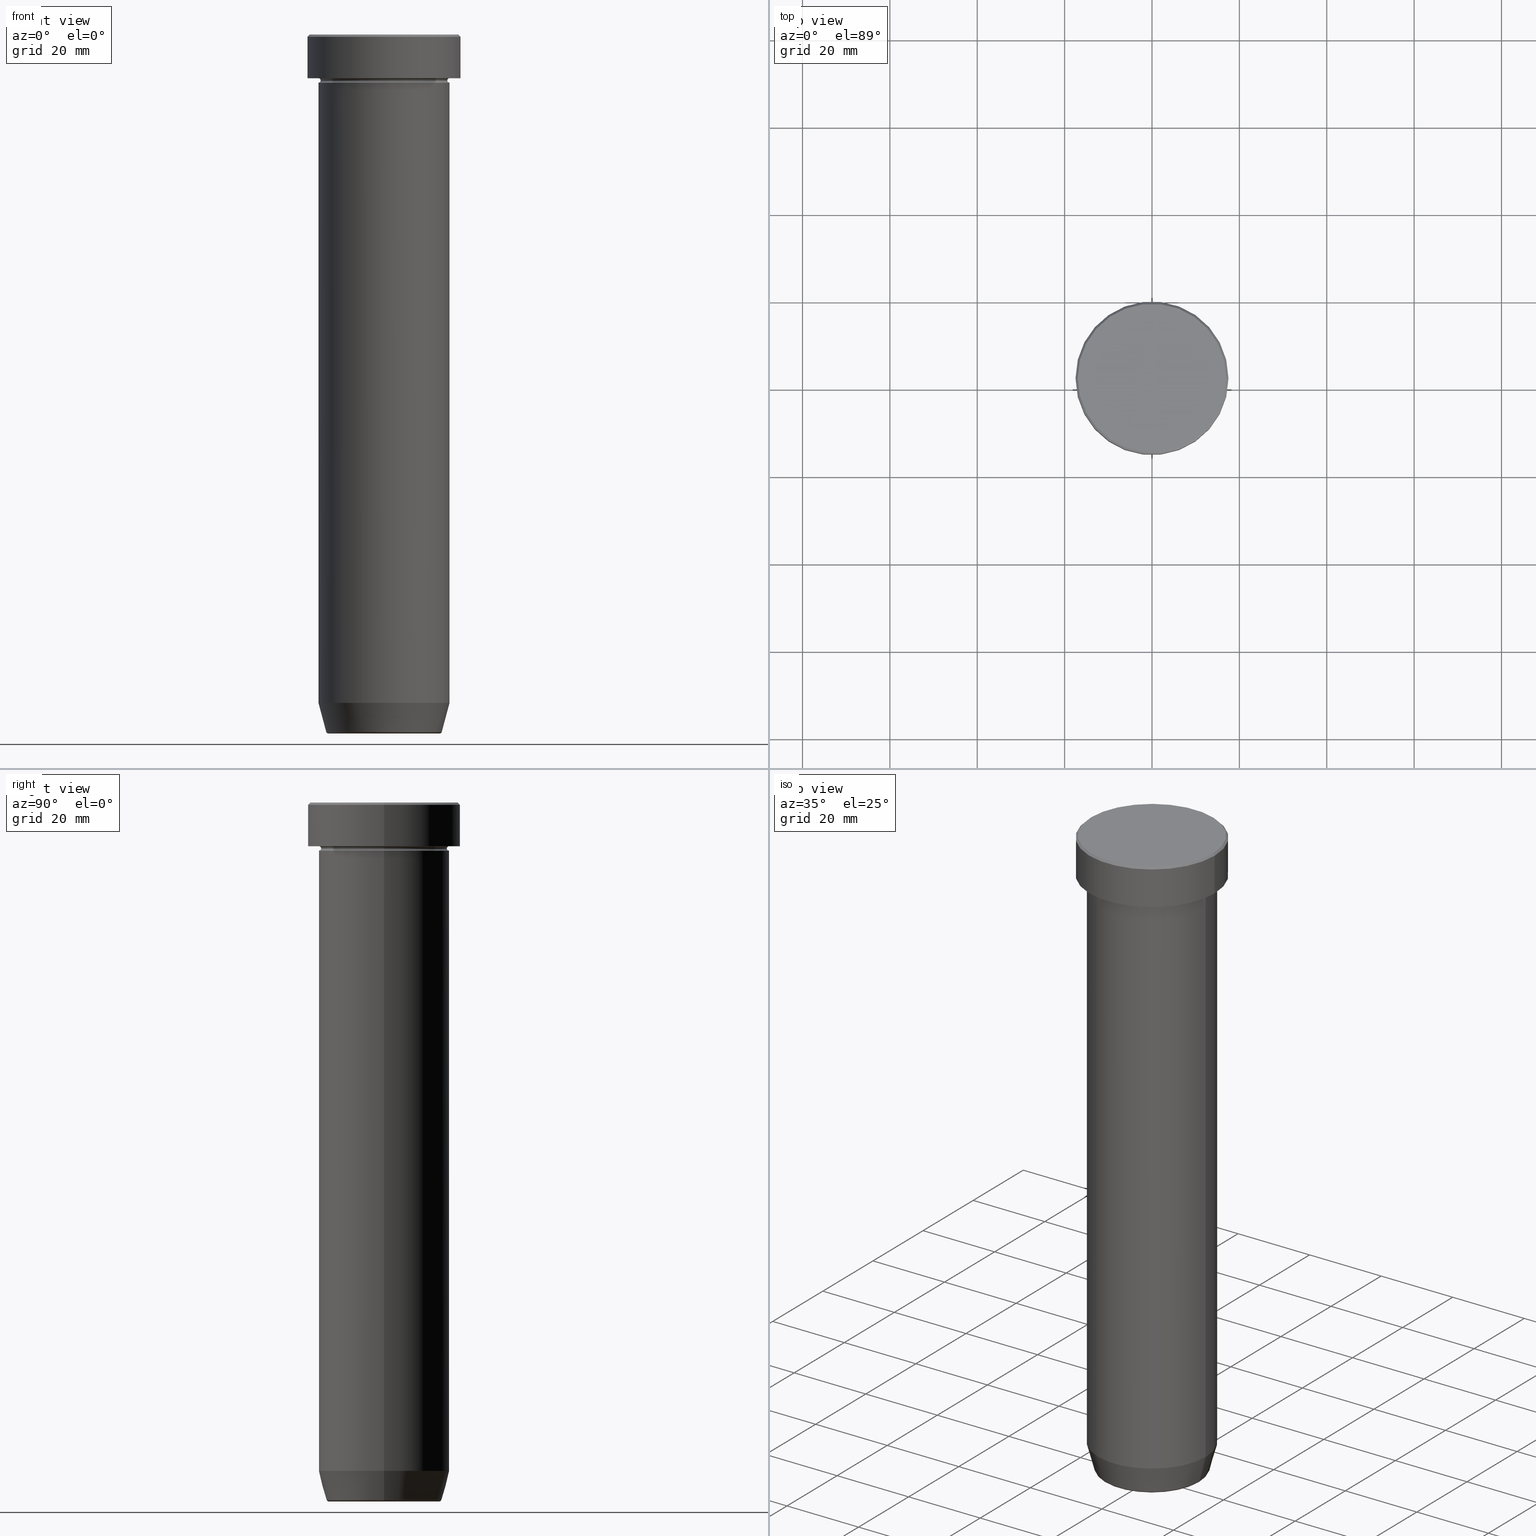
[diagram: canonical four-view strip — front | top / right | iso, engineering-drawing reading convention]
A machine part, canonical four-view strip (front | top / right | iso — engineering-drawing reading convention). The complete STEP part file that produces these views, byte-faithful:
ISO-10303-21;
HEADER;
FILE_DESCRIPTION (( 'STEP AP203' ),
    '1' );
FILE_NAME ('203a.STEP',
    '2024-01-02T17:38:34',
    ( '' ),
    ( '' ),
    'SwSTEP 2.0',
    'SolidWorks 2019',
    '' );
FILE_SCHEMA (( 'CONFIG_CONTROL_DESIGN' ));
ENDSEC;

DATA;
#1 = CARTESIAN_POINT ( 'NONE',  ( -17.50000000000000000, 2.143131898507868248E-15, 0.000000000000000000 ) ) ;
#2 = EDGE_CURVE ( 'NONE', #34, #524, #432, .T. ) ;
#3 = CARTESIAN_POINT ( 'NONE',  ( 0.000000000000000000, 0.000000000000000000, 0.000000000000000000 ) ) ;
#4 = AXIS2_PLACEMENT_3D ( 'NONE', #163, #207, #572 ) ;
#5 = ADVANCED_FACE ( 'NONE', ( #132 ), #516, .T. ) ;
#6 = AXIS2_PLACEMENT_3D ( 'NONE', #319, #7, #185 ) ;
#7 = DIRECTION ( 'NONE',  ( -0.000000000000000000, -0.000000000000000000, 1.000000000000000000 ) ) ;
#8 = ORIENTED_EDGE ( 'NONE', *, *, #335, .F. ) ;
#9 = EDGE_CURVE ( 'NONE', #395, #556, #225, .T. ) ;
#10 = DIRECTION ( 'NONE',  ( 1.000000000000000000, 0.000000000000000000, 0.000000000000000000 ) ) ;
#11 = CC_DESIGN_PERSON_AND_ORGANIZATION_ASSIGNMENT ( #115, #481, ( #554 ) ) ;
#12 = UNCERTAINTY_MEASURE_WITH_UNIT (LENGTH_MEASURE( 1.000000000000000082E-05 ), #327, 'distance_accuracy_value', 'NONE');
#13 = COORDINATED_UNIVERSAL_TIME_OFFSET ( 1, 0, .AHEAD. ) ;
#14 = AXIS2_PLACEMENT_3D ( 'NONE', #116, #70, #536 ) ;
#15 = CARTESIAN_POINT ( 'NONE',  ( -17.50000000000000000, 2.143131898507868248E-15, -0.5000000000000073275 ) ) ;
#16 = CLOSED_SHELL ( 'NONE', ( #269, #405, #596, #527, #288, #339, #317, #170, #472, #531, #179, #487, #539 ) ) ;
#17 = DIRECTION ( 'NONE',  ( 1.000000000000000000, 0.000000000000000000, 0.000000000000000000 ) ) ;
#18 = CARTESIAN_POINT ( 'NONE',  ( 0.000000000000000000, 0.000000000000000000, -160.0000000000000000 ) ) ;
#19 = EDGE_LOOP ( 'NONE', ( #355, #568 ) ) ;
#20 = AXIS2_PLACEMENT_3D ( 'NONE', #249, #99, #204 ) ;
#21 = DIRECTION ( 'NONE',  ( -1.224646799147353207E-16, 1.000000000000000000, 0.000000000000000000 ) ) ;
#22 = VERTEX_POINT ( 'NONE', #74 ) ;
#23 = SECURITY_CLASSIFICATION_LEVEL ( 'unclassified' ) ;
#24 = CIRCLE ( 'NONE', #222, 15.00000000000000000 ) ;
#25 = EDGE_LOOP ( 'NONE', ( #546, #250 ) ) ;
#26 = LINE ( 'NONE', #28, #381 ) ;
#27 = ORIENTED_EDGE ( 'NONE', *, *, #579, .F. ) ;
#28 = CARTESIAN_POINT ( 'NONE',  ( 17.50000000000000000, 0.000000000000000000, 0.000000000000000000 ) ) ;
#29 = APPROVAL ( #580, 'NEUR�EN�' ) ;
#30 = ORIENTED_EDGE ( 'NONE', *, *, #520, .T. ) ;
#31 = CALENDAR_DATE ( 2024, 2, 1 ) ;
#32 = FACE_OUTER_BOUND ( 'NONE', #526, .T. ) ;
#33 = VECTOR ( 'NONE', #545, 1000.000000000000000 ) ;
#34 = VERTEX_POINT ( 'NONE', #439 ) ;
#35 = CIRCLE ( 'NONE', #203, 15.00000000000000000 ) ;
#36 = CIRCLE ( 'NONE', #211, 0.5000000000000004441 ) ;
#37 = DATE_AND_TIME ( #340, #443 ) ;
#38 = DIRECTION ( 'NONE',  ( -1.000000000000000000, 0.000000000000000000, -0.000000000000000000 ) ) ;
#39 = ORIENTED_EDGE ( 'NONE', *, *, #205, .F. ) ;
#40 = CARTESIAN_POINT ( 'NONE',  ( -15.00000000000000000, 1.836970198721029589E-15, -36.00000000000000000 ) ) ;
#41 = EDGE_LOOP ( 'NONE', ( #303, #161, #311, #413 ) ) ;
#42 = DIRECTION ( 'NONE',  ( -1.000000000000000000, 0.000000000000000000, 0.000000000000000000 ) ) ;
#43 = ORIENTED_EDGE ( 'NONE', *, *, #495, .T. ) ;
#44 = CARTESIAN_POINT ( 'NONE',  ( 17.50000000000000000, 0.000000000000000000, -9.999999999999998224 ) ) ;
#45 = DIRECTION ( 'NONE',  ( 1.000000000000000000, 0.000000000000000000, 0.000000000000000000 ) ) ;
#46 = EDGE_CURVE ( 'NONE', #60, #504, #89, .T. ) ;
#47 = DIRECTION ( 'NONE',  ( -0.000000000000000000, -0.000000000000000000, 1.000000000000000000 ) ) ;
#48 = DIRECTION ( 'NONE',  ( -0.000000000000000000, -0.000000000000000000, 1.000000000000000000 ) ) ;
#49 = AXIS2_PLACEMENT_3D ( 'NONE', #433, #398, #533 ) ;
#50 = AXIS2_PLACEMENT_3D ( 'NONE', #518, #103, #564 ) ;
#51 = DIRECTION ( 'NONE',  ( 1.000000000000000000, 0.000000000000000000, 0.000000000000000000 ) ) ;
#52 = DIRECTION ( 'NONE',  ( 1.000000000000000000, 0.000000000000000000, 0.000000000000000000 ) ) ;
#53 = DIRECTION ( 'NONE',  ( -1.000000000000000000, 0.000000000000000000, 0.000000000000000000 ) ) ;
#54 = FACE_OUTER_BOUND ( 'NONE', #41, .T. ) ;
#55 = PERSON_AND_ORGANIZATION ( #446, #552 ) ;
#56 = CYLINDRICAL_SURFACE ( 'NONE', #20, 17.50000000000000000 ) ;
#57 = AXIS2_PLACEMENT_3D ( 'NONE', #598, #92, #264 ) ;
#58 = ORIENTED_EDGE ( 'NONE', *, *, #360, .F. ) ;
#59 = DIRECTION ( 'NONE',  ( -0.000000000000000000, -0.000000000000000000, 1.000000000000000000 ) ) ;
#60 = VERTEX_POINT ( 'NONE', #245 ) ;
#61 = PRODUCT_RELATED_PRODUCT_CATEGORY ( 'detail', '', ( #464 ) ) ;
#62 = FACE_OUTER_BOUND ( 'NONE', #437, .T. ) ;
#63 = AXIS2_PLACEMENT_3D ( 'NONE', #379, #559, #466 ) ;
#64 = CARTESIAN_POINT ( 'NONE',  ( 0.000000000000000000, 0.000000000000000000, -9.999999999999998224 ) ) ;
#65 = ORIENTED_EDGE ( 'NONE', *, *, #148, .F. ) ;
#66 = CARTESIAN_POINT ( 'NONE',  ( -15.00000000000000000, 1.836970198721029589E-15, -10.49999999999999822 ) ) ;
#67 = CONICAL_SURFACE ( 'NONE', #578, 17.00000000000000000, 0.7853981633974415066 ) ;
#68 = ORIENTED_EDGE ( 'NONE', *, *, #265, .F. ) ;
#69 = PERSON_AND_ORGANIZATION_ROLE ( 'creator' ) ;
#70 = DIRECTION ( 'NONE',  ( -0.000000000000000000, -0.000000000000000000, 1.000000000000000000 ) ) ;
#71 = EDGE_CURVE ( 'NONE', #171, #395, #370, .T. ) ;
#72 = ORIENTED_EDGE ( 'NONE', *, *, #123, .F. ) ;
#73 = DIRECTION ( 'NONE',  ( 1.000000000000000000, 0.000000000000000000, 0.000000000000000000 ) ) ;
#74 = CARTESIAN_POINT ( 'NONE',  ( 15.00000000000000000, 0.000000000000000000, -11.00000000000000000 ) ) ;
#75 = DIRECTION ( 'NONE',  ( 1.000000000000000000, 0.000000000000000000, 0.000000000000000000 ) ) ;
#76 = EDGE_LOOP ( 'NONE', ( #124, #108, #58, #589 ) ) ;
#77 = TOROIDAL_SURFACE ( 'NONE', #460, 15.00000000000000000, 0.5000000000000000000 ) ;
#78 = EDGE_CURVE ( 'NONE', #524, #384, #593, .T. ) ;
#79 = CIRCLE ( 'NONE', #224, 0.5000000000000004441 ) ;
#80 = PERSON_AND_ORGANIZATION ( #446, #552 ) ;
#81 = CARTESIAN_POINT ( 'NONE',  ( -13.12435565298212836, 1.607270014129603399E-15, -160.0000000000000000 ) ) ;
#82 = DIRECTION ( 'NONE',  ( -0.000000000000000000, -0.000000000000000000, 1.000000000000000000 ) ) ;
#83 = APPROVAL ( #323, 'NEUR�EN�' ) ;
#84 = DIRECTION ( 'NONE',  ( -0.000000000000000000, -0.000000000000000000, 1.000000000000000000 ) ) ;
#85 = ORIENTED_EDGE ( 'NONE', *, *, #335, .T. ) ;
#86 = DIRECTION ( 'NONE',  ( 0.000000000000000000, 0.000000000000000000, -1.000000000000000000 ) ) ;
#87 = ORIENTED_EDGE ( 'NONE', *, *, #399, .T. ) ;
#88 = APPROVAL_DATE_TIME ( #591, #372 ) ;
#89 = CIRCLE ( 'NONE', #154, 17.50000000000000000 ) ;
#90 = DIRECTION ( 'NONE',  ( -0.000000000000000000, -0.000000000000000000, 1.000000000000000000 ) ) ;
#91 = ADVANCED_FACE ( 'NONE', ( #110 ), #322, .T. ) ;
#92 = DIRECTION ( 'NONE',  ( 0.000000000000000000, 0.000000000000000000, -1.000000000000000000 ) ) ;
#93 = CIRCLE ( 'NONE', #585, 14.49999999999999822 ) ;
#94 = LINE ( 'NONE', #550, #33 ) ;
#95 =( NAMED_UNIT ( * ) SI_UNIT ( $, .STERADIAN. ) SOLID_ANGLE_UNIT ( ) );
#96 = LOCAL_TIME ( 18, 38, 34.00000000000000000, #165 ) ;
#97 = DIRECTION ( 'NONE',  ( -0.000000000000000000, -0.000000000000000000, 1.000000000000000000 ) ) ;
#98 = CARTESIAN_POINT ( 'NONE',  ( 0.000000000000000000, 0.000000000000000000, 0.000000000000000000 ) ) ;
#99 = DIRECTION ( 'NONE',  ( -0.000000000000000000, -0.000000000000000000, 1.000000000000000000 ) ) ;
#100 = VERTEX_POINT ( 'NONE', #197 ) ;
#101 = AXIS2_PLACEMENT_3D ( 'NONE', #146, #21, #277 ) ;
#102 = DIRECTION ( 'NONE',  ( -1.000000000000000000, 0.000000000000000000, 0.000000000000000000 ) ) ;
#103 = DIRECTION ( 'NONE',  ( 1.224646799147353207E-16, 1.000000000000000000, 0.000000000000000000 ) ) ;
#104 = APPROVAL_PERSON_ORGANIZATION ( #80, #29, #532 ) ;
#105 = DIRECTION ( 'NONE',  ( 1.000000000000000000, 0.000000000000000000, 0.000000000000000000 ) ) ;
#106 = AXIS2_PLACEMENT_3D ( 'NONE', #566, #109, #289 ) ;
#107 = CC_DESIGN_DATE_AND_TIME_ASSIGNMENT ( #37, #528, ( #554 ) ) ;
#108 = ORIENTED_EDGE ( 'NONE', *, *, #123, .T. ) ;
#109 = DIRECTION ( 'NONE',  ( 0.000000000000000000, 0.000000000000000000, 1.000000000000000000 ) ) ;
#110 = FACE_OUTER_BOUND ( 'NONE', #537, .T. ) ;
#111 = EDGE_LOOP ( 'NONE', ( #164, #201 ) ) ;
#112 = DIRECTION ( 'NONE',  ( -0.000000000000000000, -0.000000000000000000, 1.000000000000000000 ) ) ;
#113 = ORIENTED_EDGE ( 'NONE', *, *, #295, .F. ) ;
#114 = CC_DESIGN_PERSON_AND_ORGANIZATION_ASSIGNMENT ( #486, #69, ( #373 ) ) ;
#115 = PERSON_AND_ORGANIZATION ( #446, #552 ) ;
#116 = CARTESIAN_POINT ( 'NONE',  ( 0.000000000000000000, 0.000000000000000000, -9.999999999999998224 ) ) ;
#117 = CONICAL_SURFACE ( 'NONE', #305, 17.00000000000000000, 0.7853981633974415066 ) ;
#118 = CC_DESIGN_APPROVAL ( #372, ( #471 ) ) ;
#119 = ORIENTED_EDGE ( 'NONE', *, *, #396, .F. ) ;
#120 = DIRECTION ( 'NONE',  ( -1.000000000000000000, 0.000000000000000000, 0.000000000000000000 ) ) ;
#121 = VERTEX_POINT ( 'NONE', #189 ) ;
#122 = DIRECTION ( 'NONE',  ( -0.000000000000000000, -0.000000000000000000, 1.000000000000000000 ) ) ;
#123 = EDGE_CURVE ( 'NONE', #139, #541, #463, .T. ) ;
#124 = ORIENTED_EDGE ( 'NONE', *, *, #511, .F. ) ;
#125 = DIRECTION ( 'NONE',  ( -0.000000000000000000, -0.000000000000000000, 1.000000000000000000 ) ) ;
#126 = EDGE_CURVE ( 'NONE', #291, #139, #193, .T. ) ;
#127 = ORIENTED_EDGE ( 'NONE', *, *, #257, .F. ) ;
#128 = CIRCLE ( 'NONE', #403, 17.50000000000000000 ) ;
#129 = DIRECTION ( 'NONE',  ( -1.000000000000000000, 0.000000000000000000, 0.000000000000000000 ) ) ;
#130 = DIRECTION ( 'NONE',  ( -0.000000000000000000, -0.000000000000000000, 1.000000000000000000 ) ) ;
#131 = PLANE ( 'NONE',  #57 ) ;
#132 = FACE_OUTER_BOUND ( 'NONE', #338, .T. ) ;
#133 = CARTESIAN_POINT ( 'NONE',  ( 0.000000000000000000, 0.000000000000000000, -10.49999999999999822 ) ) ;
#134 = TOROIDAL_SURFACE ( 'NONE', #431, 15.00000000000000000, 0.5000000000000000000 ) ;
#135 = AXIS2_PLACEMENT_3D ( 'NONE', #66, #538, #252 ) ;
#136 = LINE ( 'NONE', #273, #575 ) ;
#137 = DIRECTION ( 'NONE',  ( 0.000000000000000000, 0.000000000000000000, -1.000000000000000000 ) ) ;
#138 = TOROIDAL_SURFACE ( 'NONE', #314, 12.74069215899265295, 0.5000000000000000000 ) ;
#139 = VERTEX_POINT ( 'NONE', #242 ) ;
#140 = APPLICATION_CONTEXT ( 'configuration controlled 3d designs of mechanical parts and assemblies' ) ;
#141 = AXIS2_PLACEMENT_3D ( 'NONE', #492, #444, #38 ) ;
#142 = PERSON_AND_ORGANIZATION ( #446, #552 ) ;
#143 = LOCAL_TIME ( 18, 38, 34.00000000000000000, #13 ) ;
#144 = CARTESIAN_POINT ( 'NONE',  ( 0.000000000000000000, 0.000000000000000000, -160.0000000000000000 ) ) ;
#145 = CARTESIAN_POINT ( 'NONE',  ( 15.00000000000000000, 0.000000000000000000, -10.49999999999999822 ) ) ;
#146 = CARTESIAN_POINT ( 'NONE',  ( 15.00000000000000000, 1.836970198721029589E-15, -10.49999999999999822 ) ) ;
#147 = CARTESIAN_POINT ( 'NONE',  ( 0.000000000000000000, 0.000000000000000000, -159.6294095225512422 ) ) ;
#148 = EDGE_CURVE ( 'NONE', #422, #287, #475, .T. ) ;
#149 = DIRECTION ( 'NONE',  ( -0.000000000000000000, -0.000000000000000000, 1.000000000000000000 ) ) ;
#150 = ORIENTED_EDGE ( 'NONE', *, *, #557, .T. ) ;
#151 = PLANE ( 'NONE',  #296 ) ;
#152 = CIRCLE ( 'NONE', #251, 13.22365507213718772 ) ;
#153 = CARTESIAN_POINT ( 'NONE',  ( 17.00000000000000000, 2.081899558550500280E-15, 0.000000000000000000 ) ) ;
#154 = AXIS2_PLACEMENT_3D ( 'NONE', #214, #82, #286 ) ;
#155 = AXIS2_PLACEMENT_3D ( 'NONE', #597, #218, #51 ) ;
#156 = ORIENTED_EDGE ( 'NONE', *, *, #2, .T. ) ;
#157 = CARTESIAN_POINT ( 'NONE',  ( 15.00000000000000000, 0.000000000000000000, -36.00000000000000000 ) ) ;
#158 = EDGE_LOOP ( 'NONE', ( #576, #206, #263, #235 ) ) ;
#159 = DATE_AND_TIME ( #571, #96 ) ;
#160 = FACE_OUTER_BOUND ( 'NONE', #176, .T. ) ;
#161 = ORIENTED_EDGE ( 'NONE', *, *, #2, .F. ) ;
#162 = CC_DESIGN_PERSON_AND_ORGANIZATION_ASSIGNMENT ( #216, #428, ( #373 ) ) ;
#163 = CARTESIAN_POINT ( 'NONE',  ( 0.000000000000000000, 0.000000000000000000, 0.000000000000000000 ) ) ;
#164 = ORIENTED_EDGE ( 'NONE', *, *, #352, .F. ) ;
#165 = COORDINATED_UNIVERSAL_TIME_OFFSET ( 1, 0, .AHEAD. ) ;
#166 = CARTESIAN_POINT ( 'NONE',  ( 0.000000000000000000, 0.000000000000000000, 0.000000000000000000 ) ) ;
#167 = EDGE_LOOP ( 'NONE', ( #336, #489 ) ) ;
#168 = CIRCLE ( 'NONE', #63, 15.00000000000000000 ) ;
#169 = DIRECTION ( 'NONE',  ( 1.000000000000000000, 0.000000000000000000, 0.000000000000000000 ) ) ;
#170 = ADVANCED_FACE ( 'NONE', ( #470 ), #56, .T. ) ;
#171 = VERTEX_POINT ( 'NONE', #290 ) ;
#172 = CARTESIAN_POINT ( 'NONE',  ( 0.000000000000000000, 0.000000000000000000, 0.000000000000000000 ) ) ;
#173 = ORIENTED_EDGE ( 'NONE', *, *, #9, .F. ) ;
#174 = VECTOR ( 'NONE', #356, 1000.000000000000000 ) ;
#175 = FACE_BOUND ( 'NONE', #19, .T. ) ;
#176 = EDGE_LOOP ( 'NONE', ( #301, #380, #544, #127 ) ) ;
#177 = EDGE_CURVE ( 'NONE', #100, #287, #449, .T. ) ;
#178 = CALENDAR_DATE ( 2024, 2, 1 ) ;
#179 = ADVANCED_FACE ( 'NONE', ( #239 ), #350, .F. ) ;
#180 = LINE ( 'NONE', #594, #411 ) ;
#181 = FACE_OUTER_BOUND ( 'NONE', #415, .T. ) ;
#182 = CIRCLE ( 'NONE', #522, 0.5000000000000004441 ) ;
#183 = APPROVAL_PERSON_ORGANIZATION ( #599, #372, #401 ) ;
#184 = CARTESIAN_POINT ( 'NONE',  ( 0.000000000000000000, 0.000000000000000000, 0.000000000000000000 ) ) ;
#185 = DIRECTION ( 'NONE',  ( 1.000000000000000000, 0.000000000000000000, 0.000000000000000000 ) ) ;
#186 = ORIENTED_EDGE ( 'NONE', *, *, #560, .F. ) ;
#187 = ADVANCED_FACE ( 'NONE', ( #515 ), #374, .T. ) ;
#188 = PERSON_AND_ORGANIZATION_ROLE ( 'design_owner' ) ;
#189 = CARTESIAN_POINT ( 'NONE',  ( -15.00000000000000000, 1.836970198721029589E-15, -36.00000000000000000 ) ) ;
#190 = DIRECTION ( 'NONE',  ( 1.000000000000000000, 0.000000000000000000, 0.000000000000000000 ) ) ;
#191 = APPLICATION_CONTEXT ( 'configuration controlled 3d designs of mechanical parts and assemblies' ) ;
#192 = DIRECTION ( 'NONE',  ( 1.000000000000000000, 0.000000000000000000, 0.000000000000000000 ) ) ;
#193 = CIRCLE ( 'NONE', #508, 17.00000000000000000 ) ;
#194 = CC_DESIGN_DATE_AND_TIME_ASSIGNMENT ( #549, #501, ( #471 ) ) ;
#195 = FACE_OUTER_BOUND ( 'NONE', #243, .T. ) ;
#196 = EDGE_CURVE ( 'NONE', #100, #406, #93, .T. ) ;
#197 = CARTESIAN_POINT ( 'NONE',  ( 14.49999999999999822, 0.000000000000000000, -10.49999999999999822 ) ) ;
#198 = ORIENTED_EDGE ( 'NONE', *, *, #177, .F. ) ;
#199 = DIRECTION ( 'NONE',  ( 1.000000000000000000, 0.000000000000000000, 0.000000000000000000 ) ) ;
#200 = DIRECTION ( 'NONE',  ( -0.000000000000000000, -0.000000000000000000, 1.000000000000000000 ) ) ;
#201 = ORIENTED_EDGE ( 'NONE', *, *, #46, .F. ) ;
#202 = PERSON_AND_ORGANIZATION ( #446, #552 ) ;
#203 = AXIS2_PLACEMENT_3D ( 'NONE', #397, #584, #351 ) ;
#204 = DIRECTION ( 'NONE',  ( 1.000000000000000000, 0.000000000000000000, 0.000000000000000000 ) ) ;
#205 = EDGE_CURVE ( 'NONE', #309, #246, #168, .T. ) ;
#206 = ORIENTED_EDGE ( 'NONE', *, *, #307, .T. ) ;
#207 = DIRECTION ( 'NONE',  ( 0.000000000000000000, -0.000000000000000000, 1.000000000000000000 ) ) ;
#208 = ORIENTED_EDGE ( 'NONE', *, *, #300, .F. ) ;
#209 = FACE_OUTER_BOUND ( 'NONE', #76, .T. ) ;
#210 = ORIENTED_EDGE ( 'NONE', *, *, #386, .T. ) ;
#211 = AXIS2_PLACEMENT_3D ( 'NONE', #310, #503, #86 ) ;
#212 = CARTESIAN_POINT ( 'NONE',  ( 0.000000000000000000, 0.000000000000000000, -36.00000000000000000 ) ) ;
#213 = AXIS2_PLACEMENT_3D ( 'NONE', #344, #259, #292 ) ;
#214 = CARTESIAN_POINT ( 'NONE',  ( 0.000000000000000000, 0.000000000000000000, -9.999999999999998224 ) ) ;
#215 = CC_DESIGN_PERSON_AND_ORGANIZATION_ASSIGNMENT ( #55, #188, ( #464 ) ) ;
#216 = PERSON_AND_ORGANIZATION ( #446, #552 ) ;
#217 = CARTESIAN_POINT ( 'NONE',  ( 15.00000000000000000, 1.836970198721029589E-15, -9.999999999999998224 ) ) ;
#218 = DIRECTION ( 'NONE',  ( 0.000000000000000000, 0.000000000000000000, -1.000000000000000000 ) ) ;
#219 = DIRECTION ( 'NONE',  ( -0.2588190451025210170, 3.169619151431768639E-17, 0.9659258262890680902 ) ) ;
#220 = ORIENTED_EDGE ( 'NONE', *, *, #196, .T. ) ;
#221 = FACE_OUTER_BOUND ( 'NONE', #530, .T. ) ;
#222 = AXIS2_PLACEMENT_3D ( 'NONE', #499, #48, #548 ) ;
#223 = ORIENTED_EDGE ( 'NONE', *, *, #247, .T. ) ;
#224 = AXIS2_PLACEMENT_3D ( 'NONE', #145, #367, #244 ) ;
#225 = CIRCLE ( 'NONE', #461, 15.00000000000000000 ) ;
#226 = DIRECTION ( 'NONE',  ( -0.000000000000000000, -0.000000000000000000, 1.000000000000000000 ) ) ;
#227 = CARTESIAN_POINT ( 'NONE',  ( 0.000000000000000000, 0.000000000000000000, -10.49999999999999822 ) ) ;
#228 = CARTESIAN_POINT ( 'NONE',  ( -12.74069215899265295, 1.589857736427680246E-15, -160.0000000000000000 ) ) ;
#229 = ADVANCED_FACE ( 'NONE', ( #54 ), #138, .T. ) ;
#230 = AXIS2_PLACEMENT_3D ( 'NONE', #297, #574, #75 ) ;
#231 = EDGE_LOOP ( 'NONE', ( #330, #468, #65, #434 ) ) ;
#232 = VECTOR ( 'NONE', #382, 1000.000000000000114 ) ;
#233 = DIRECTION ( 'NONE',  ( 1.000000000000000000, 0.000000000000000000, 0.000000000000000000 ) ) ;
#234 = EDGE_LOOP ( 'NONE', ( #474, #43, #119, #583 ) ) ;
#235 = ORIENTED_EDGE ( 'NONE', *, *, #378, .F. ) ;
#236 = APPLICATION_PROTOCOL_DEFINITION ( 'international standard', 'config_control_design', 1994, #191 ) ;
#237 = DIRECTION ( 'NONE',  ( -0.000000000000000000, -0.000000000000000000, 1.000000000000000000 ) ) ;
#238 = DIRECTION ( 'NONE',  ( -0.000000000000000000, -0.000000000000000000, 1.000000000000000000 ) ) ;
#239 = FACE_OUTER_BOUND ( 'NONE', #452, .T. ) ;
#240 = CIRCLE ( 'NONE', #514, 17.50000000000000000 ) ;
#241 = LOCAL_TIME ( 18, 38, 34.00000000000000000, #509 ) ;
#242 = CARTESIAN_POINT ( 'NONE',  ( 17.00000000000000000, 2.112515728529184067E-15, 0.000000000000000000 ) ) ;
#243 = EDGE_LOOP ( 'NONE', ( #156, #223 ) ) ;
#244 = DIRECTION ( 'NONE',  ( 0.000000000000000000, 0.000000000000000000, -1.000000000000000000 ) ) ;
#245 = CARTESIAN_POINT ( 'NONE',  ( -17.50000000000000000, 2.143131898507868248E-15, -9.999999999999998224 ) ) ;
#246 = VERTEX_POINT ( 'NONE', #157 ) ;
#247 = EDGE_CURVE ( 'NONE', #524, #34, #507, .T. ) ;
#248 = FACE_OUTER_BOUND ( 'NONE', #158, .T. ) ;
#249 = CARTESIAN_POINT ( 'NONE',  ( 0.000000000000000000, 0.000000000000000000, 0.000000000000000000 ) ) ;
#250 = ORIENTED_EDGE ( 'NONE', *, *, #307, .F. ) ;
#251 = AXIS2_PLACEMENT_3D ( 'NONE', #435, #122, #256 ) ;
#252 = DIRECTION ( 'NONE',  ( -1.000000000000000000, 1.224646799147349509E-16, 0.000000000000000000 ) ) ;
#253 = VERTEX_POINT ( 'NONE', #15 ) ;
#254 = CARTESIAN_POINT ( 'NONE',  ( -17.00000000000000000, 0.000000000000000000, 0.000000000000000000 ) ) ;
#255 = ORIENTED_EDGE ( 'NONE', *, *, #247, .F. ) ;
#256 = DIRECTION ( 'NONE',  ( -1.000000000000000000, 0.000000000000000000, 0.000000000000000000 ) ) ;
#257 = EDGE_CURVE ( 'NONE', #556, #395, #283, .T. ) ;
#258 = ORIENTED_EDGE ( 'NONE', *, *, #493, .T. ) ;
#259 = DIRECTION ( 'NONE',  ( 0.000000000000000000, 0.000000000000000000, -1.000000000000000000 ) ) ;
#260 = ORIENTED_EDGE ( 'NONE', *, *, #579, .T. ) ;
#261 = CALENDAR_DATE ( 2024, 2, 1 ) ;
#262 = CARTESIAN_POINT ( 'NONE',  ( 0.000000000000000000, 0.000000000000000000, -11.00000000000000000 ) ) ;
#263 = ORIENTED_EDGE ( 'NONE', *, *, #454, .T. ) ;
#264 = DIRECTION ( 'NONE',  ( -1.000000000000000000, 0.000000000000000000, -0.000000000000000000 ) ) ;
#265 = EDGE_CURVE ( 'NONE', #541, #253, #240, .T. ) ;
#266 = ORIENTED_EDGE ( 'NONE', *, *, #454, .F. ) ;
#267 = COORDINATED_UNIVERSAL_TIME_OFFSET ( 1, 0, .AHEAD. ) ;
#268 = CARTESIAN_POINT ( 'NONE',  ( -15.00000000000000000, 0.000000000000000000, -9.999999999999998224 ) ) ;
#269 = ADVANCED_FACE ( 'NONE', ( #209 ), #117, .T. ) ;
#270 = ORIENTED_EDGE ( 'NONE', *, *, #300, .T. ) ;
#271 = CIRCLE ( 'NONE', #362, 13.22365507213718772 ) ;
#272 = DIRECTION ( 'NONE',  ( -0.000000000000000000, -0.000000000000000000, 1.000000000000000000 ) ) ;
#273 = CARTESIAN_POINT ( 'NONE',  ( 15.00000000000000000, 0.000000000000000000, 0.000000000000000000 ) ) ;
#274 = CC_DESIGN_PERSON_AND_ORGANIZATION_ASSIGNMENT ( #202, #505, ( #471 ) ) ;
#275 = CYLINDRICAL_SURFACE ( 'NONE', #313, 15.00000000000000000 ) ;
#276 = VECTOR ( 'NONE', #219, 1000.000000000000114 ) ;
#277 = DIRECTION ( 'NONE',  ( -1.000000000000000000, -1.224646799147349509E-16, 0.000000000000000000 ) ) ;
#278 = CARTESIAN_POINT ( 'NONE',  ( -15.00000000000000000, 1.836970198721029589E-15, -152.9999999999999716 ) ) ;
#279 = CARTESIAN_POINT ( 'NONE',  ( 0.000000000000000000, 0.000000000000000000, -10.49999999999999822 ) ) ;
#280 = CARTESIAN_POINT ( 'NONE',  ( 0.000000000000000000, 1.347111479062088839E-14, -160.0000000000000000 ) ) ;
#281 = DIRECTION ( 'NONE',  ( -0.000000000000000000, -0.000000000000000000, 1.000000000000000000 ) ) ;
#282 = VECTOR ( 'NONE', #457, 1000.000000000000000 ) ;
#283 = CIRCLE ( 'NONE', #343, 15.00000000000000000 ) ;
#284 = APPLICATION_PROTOCOL_DEFINITION ( 'international standard', 'config_control_design', 1994, #140 ) ;
#285 = APPROVAL_PERSON_ORGANIZATION ( #142, #83, #418 ) ;
#286 = DIRECTION ( 'NONE',  ( 1.000000000000000000, 0.000000000000000000, 0.000000000000000000 ) ) ;
#287 = VERTEX_POINT ( 'NONE', #217 ) ;
#288 = ADVANCED_FACE ( 'NONE', ( #299 ), #385, .T. ) ;
#289 = DIRECTION ( 'NONE',  ( 1.000000000000000000, 0.000000000000000000, 0.000000000000000000 ) ) ;
#290 = CARTESIAN_POINT ( 'NONE',  ( 13.22365507213718949, 0.000000000000000000, -159.6294095225512422 ) ) ;
#291 = VERTEX_POINT ( 'NONE', #254 ) ;
#292 = DIRECTION ( 'NONE',  ( -1.000000000000000000, 0.000000000000000000, -0.000000000000000000 ) ) ;
#293 = EDGE_LOOP ( 'NONE', ( #210, #87, #8, #266 ) ) ;
#294 = APPROVAL_DATE_TIME ( #441, #83 ) ;
#295 = EDGE_CURVE ( 'NONE', #504, #541, #26, .T. ) ;
#296 = AXIS2_PLACEMENT_3D ( 'NONE', #280, #555, #513 ) ;
#297 = CARTESIAN_POINT ( 'NONE',  ( 0.000000000000000000, 0.000000000000000000, 0.000000000000000000 ) ) ;
#298 = ORIENTED_EDGE ( 'NONE', *, *, #557, .F. ) ;
#299 = FACE_OUTER_BOUND ( 'NONE', #480, .T. ) ;
#300 = EDGE_CURVE ( 'NONE', #406, #342, #392, .T. ) ;
#301 = ORIENTED_EDGE ( 'NONE', *, *, #383, .F. ) ;
#302 = DIRECTION ( 'NONE',  ( 0.000000000000000000, 0.000000000000000000, -1.000000000000000000 ) ) ;
#303 = ORIENTED_EDGE ( 'NONE', *, *, #78, .F. ) ;
#304 = LINE ( 'NONE', #81, #276 ) ;
#305 = AXIS2_PLACEMENT_3D ( 'NONE', #166, #388, #120 ) ;
#306 = DIRECTION ( 'NONE',  ( 1.000000000000000000, 0.000000000000000000, 0.000000000000000000 ) ) ;
#307 = EDGE_CURVE ( 'NONE', #121, #448, #577, .T. ) ;
#308 = CARTESIAN_POINT ( 'NONE',  ( 15.00000000000000000, 0.000000000000000000, -152.9999999999999716 ) ) ;
#309 = VERTEX_POINT ( 'NONE', #40 ) ;
#310 = CARTESIAN_POINT ( 'NONE',  ( -15.00000000000000000, 0.000000000000000000, -10.49999999999999822 ) ) ;
#311 = ORIENTED_EDGE ( 'NONE', *, *, #423, .T. ) ;
#312 = CARTESIAN_POINT ( 'NONE',  ( -15.00000000000000000, 1.836970198721029589E-15, 0.000000000000000000 ) ) ;
#313 = AXIS2_PLACEMENT_3D ( 'NONE', #184, #366, #17 ) ;
#314 = AXIS2_PLACEMENT_3D ( 'NONE', #569, #59, #479 ) ;
#315 = CC_DESIGN_SECURITY_CLASSIFICATION ( #471, ( #373 ) ) ;
#316 = CARTESIAN_POINT ( 'NONE',  ( 0.000000000000000000, 0.000000000000000000, -9.999999999999998224 ) ) ;
#317 = ADVANCED_FACE ( 'NONE', ( #447 ), #490, .T. ) ;
#318 = CARTESIAN_POINT ( 'NONE',  ( 12.74069215899265295, 0.000000000000000000, -159.5000000000000000 ) ) ;
#319 = CARTESIAN_POINT ( 'NONE',  ( 0.000000000000000000, 0.000000000000000000, 0.000000000000000000 ) ) ;
#320 = DIRECTION ( 'NONE',  ( -0.000000000000000000, -0.000000000000000000, 1.000000000000000000 ) ) ;
#321 = CIRCLE ( 'NONE', #14, 17.50000000000000000 ) ;
#322 = CONICAL_SURFACE ( 'NONE', #595, 13.12435565298212836, 0.2617993877991497409 ) ;
#323 = APPROVAL_STATUS ( 'not_yet_approved' ) ;
#324 = DIRECTION ( 'NONE',  ( 0.000000000000000000, 0.000000000000000000, -1.000000000000000000 ) ) ;
#325 = ORIENTED_EDGE ( 'NONE', *, *, #71, .F. ) ;
#326 = DIRECTION ( 'NONE',  ( 0.000000000000000000, 0.000000000000000000, -1.000000000000000000 ) ) ;
#327 =( LENGTH_UNIT ( ) NAMED_UNIT ( * ) SI_UNIT ( .MILLI., .METRE. ) );
#328 = CARTESIAN_POINT ( 'NONE',  ( 0.000000000000000000, 0.000000000000000000, 0.000000000000000000 ) ) ;
#329 = ADVANCED_FACE ( 'NONE', ( #160 ), #551, .T. ) ;
#330 = ORIENTED_EDGE ( 'NONE', *, *, #560, .T. ) ;
#331 = CIRCLE ( 'NONE', #393, 14.49999999999999822 ) ;
#332 = DIRECTION ( 'NONE',  ( 1.000000000000000000, 0.000000000000000000, 0.000000000000000000 ) ) ;
#333 = ADVANCED_BREP_SHAPE_REPRESENTATION ( '203a', ( #334, #581, #106 ), #404 ) ;
#334 = MANIFOLD_SOLID_BREP ( 'Zkosen�1', #16 ) ;
#335 = EDGE_CURVE ( 'NONE', #22, #342, #473, .T. ) ;
#336 = ORIENTED_EDGE ( 'NONE', *, *, #126, .T. ) ;
#337 = CARTESIAN_POINT ( 'NONE',  ( -13.22365507213718949, 1.728200442216588386E-15, -159.6294095225512422 ) ) ;
#338 = EDGE_LOOP ( 'NONE', ( #255, #477, #298, #494 ) ) ;
#339 = ADVANCED_FACE ( 'NONE', ( #587 ), #488, .T. ) ;
#340 = CALENDAR_DATE ( 2024, 2, 1 ) ;
#341 = DIRECTION ( 'NONE',  ( -0.000000000000000000, -0.000000000000000000, 1.000000000000000000 ) ) ;
#342 = VERTEX_POINT ( 'NONE', #540 ) ;
#343 = AXIS2_PLACEMENT_3D ( 'NONE', #561, #97, #52 ) ;
#344 = CARTESIAN_POINT ( 'NONE',  ( 0.000000000000000000, 15.00000000000000000, -36.00000000000000000 ) ) ;
#345 = AXIS2_PLACEMENT_3D ( 'NONE', #400, #130, #306 ) ;
#346 = ORIENTED_EDGE ( 'NONE', *, *, #502, .T. ) ;
#347 = APPROVAL_DATE_TIME ( #159, #29 ) ;
#348 = DIRECTION ( 'NONE',  ( 1.000000000000000000, 0.000000000000000000, 0.000000000000000000 ) ) ;
#349 = ORIENTED_EDGE ( 'NONE', *, *, #265, .T. ) ;
#350 = TOROIDAL_SURFACE ( 'NONE', #436, 15.00000000000000000, 0.5000000000000000000 ) ;
#351 = DIRECTION ( 'NONE',  ( 1.000000000000000000, 0.000000000000000000, 0.000000000000000000 ) ) ;
#352 = EDGE_CURVE ( 'NONE', #504, #60, #321, .T. ) ;
#353 = DIRECTION ( 'NONE',  ( -1.000000000000000000, 0.000000000000000000, 0.000000000000000000 ) ) ;
#354 = CIRCLE ( 'NONE', #484, 15.00000000000000000 ) ;
#355 = ORIENTED_EDGE ( 'NONE', *, *, #148, .T. ) ;
#356 = DIRECTION ( 'NONE',  ( -0.7071067811865426878, 0.000000000000000000, -0.7071067811865524577 ) ) ;
#357 = ORIENTED_EDGE ( 'NONE', *, *, #360, .T. ) ;
#358 = EDGE_CURVE ( 'NONE', #384, #171, #152, .T. ) ;
#359 = LINE ( 'NONE', #512, #174 ) ;
#360 = EDGE_CURVE ( 'NONE', #253, #541, #128, .T. ) ;
#361 = CARTESIAN_POINT ( 'NONE',  ( -14.49999999999999822, 1.806354028742345802E-15, -10.49999999999999822 ) ) ;
#362 = AXIS2_PLACEMENT_3D ( 'NONE', #147, #462, #102 ) ;
#363 = ADVANCED_FACE ( 'NONE', ( #32 ), #394, .F. ) ;
#364 = CIRCLE ( 'NONE', #442, 15.00000000000000000 ) ;
#365 = CIRCLE ( 'NONE', #535, 17.00000000000000000 ) ;
#366 = DIRECTION ( 'NONE',  ( -0.000000000000000000, -0.000000000000000000, 1.000000000000000000 ) ) ;
#367 = DIRECTION ( 'NONE',  ( 0.000000000000000000, -1.000000000000000000, 0.000000000000000000 ) ) ;
#368 = ORIENTED_EDGE ( 'NONE', *, *, #396, .T. ) ;
#369 = ORIENTED_EDGE ( 'NONE', *, *, #467, .F. ) ;
#370 = LINE ( 'NONE', #376, #232 ) ;
#371 = VECTOR ( 'NONE', #90, 1000.000000000000000 ) ;
#372 = APPROVAL ( #407, 'NEUR�EN�' ) ;
#373 = PRODUCT_DEFINITION_FORMATION_WITH_SPECIFIED_SOURCE ( 'LIBOVOLN�', '', #464, .NOT_KNOWN. ) ;
#374 = CYLINDRICAL_SURFACE ( 'NONE', #426, 15.00000000000000000 ) ;
#375 = PRODUCT_DEFINITION_SHAPE ( 'NONE', 'NONE',  #554 ) ;
#376 = CARTESIAN_POINT ( 'NONE',  ( 13.12435565298212836, 0.000000000000000000, -160.0000000000000000 ) ) ;
#377 = ORIENTED_EDGE ( 'NONE', *, *, #196, .F. ) ;
#378 = EDGE_CURVE ( 'NONE', #342, #22, #35, .T. ) ;
#379 = CARTESIAN_POINT ( 'NONE',  ( 0.000000000000000000, 0.000000000000000000, -36.00000000000000000 ) ) ;
#380 = ORIENTED_EDGE ( 'NONE', *, *, #358, .T. ) ;
#381 = VECTOR ( 'NONE', #341, 1000.000000000000000 ) ;
#382 = DIRECTION ( 'NONE',  ( 0.2588190451025210170, 0.000000000000000000, 0.9659258262890680902 ) ) ;
#383 = EDGE_CURVE ( 'NONE', #384, #556, #304, .T. ) ;
#384 = VERTEX_POINT ( 'NONE', #337 ) ;
#385 = CYLINDRICAL_SURFACE ( 'NONE', #230, 17.50000000000000000 ) ;
#386 = EDGE_CURVE ( 'NONE', #448, #121, #354, .T. ) ;
#387 = ORIENTED_EDGE ( 'NONE', *, *, #46, .T. ) ;
#388 = DIRECTION ( 'NONE',  ( 0.000000000000000000, 0.000000000000000000, -1.000000000000000000 ) ) ;
#389 = ORIENTED_EDGE ( 'NONE', *, *, #126, .F. ) ;
#390 = AXIS2_PLACEMENT_3D ( 'NONE', #227, #543, #42 ) ;
#391 = COORDINATED_UNIVERSAL_TIME_OFFSET ( 1, 0, .AHEAD. ) ;
#392 = CIRCLE ( 'NONE', #135, 0.5000000000000004441 ) ;
#393 = AXIS2_PLACEMENT_3D ( 'NONE', #478, #519, #190 ) ;
#394 = PLANE ( 'NONE',  #141 ) ;
#395 = VERTEX_POINT ( 'NONE', #308 ) ;
#396 = EDGE_CURVE ( 'NONE', #246, #309, #24, .T. ) ;
#397 = CARTESIAN_POINT ( 'NONE',  ( 0.000000000000000000, 0.000000000000000000, -11.00000000000000000 ) ) ;
#398 = DIRECTION ( 'NONE',  ( -0.000000000000000000, -0.000000000000000000, 1.000000000000000000 ) ) ;
#399 = EDGE_CURVE ( 'NONE', #121, #342, #510, .T. ) ;
#400 = CARTESIAN_POINT ( 'NONE',  ( 0.000000000000000000, 0.000000000000000000, -159.5000000000000000 ) ) ;
#401 = APPROVAL_ROLE ( '' ) ;
#402 = DIRECTION ( 'NONE',  ( 0.000000000000000000, 0.000000000000000000, -1.000000000000000000 ) ) ;
#403 = AXIS2_PLACEMENT_3D ( 'NONE', #438, #302, #169 ) ;
#404 =( GEOMETRIC_REPRESENTATION_CONTEXT ( 3 ) GLOBAL_UNCERTAINTY_ASSIGNED_CONTEXT ( ( #12 ) ) GLOBAL_UNIT_ASSIGNED_CONTEXT ( ( #327, #469, #95 ) ) REPRESENTATION_CONTEXT ( 'NONE', 'WORKASPACE' ) );
#405 = ADVANCED_FACE ( 'NONE', ( #553 ), #77, .F. ) ;
#406 = VERTEX_POINT ( 'NONE', #361 ) ;
#407 = APPROVAL_STATUS ( 'not_yet_approved' ) ;
#408 = EDGE_CURVE ( 'NONE', #287, #422, #364, .T. ) ;
#409 = LINE ( 'NONE', #1, #282 ) ;
#410 = FACE_OUTER_BOUND ( 'NONE', #293, .T. ) ;
#411 = VECTOR ( 'NONE', #272, 1000.000000000000000 ) ;
#412 = CLOSED_SHELL ( 'NONE', ( #5, #91, #187, #363, #451, #329, #588, #229 ) ) ;
#413 = ORIENTED_EDGE ( 'NONE', *, *, #358, .F. ) ;
#414 = FACE_OUTER_BOUND ( 'NONE', #111, .T. ) ;
#415 = EDGE_LOOP ( 'NONE', ( #198, #220, #346, #455 ) ) ;
#416 = MECHANICAL_CONTEXT ( 'NONE', #191, 'mechanical' ) ;
#417 = CARTESIAN_POINT ( 'NONE',  ( 0.000000000000000000, 0.000000000000000000, -0.5000000000000073275 ) ) ;
#418 = APPROVAL_ROLE ( '' ) ;
#419 = DIRECTION ( 'NONE',  ( -0.000000000000000000, -0.000000000000000000, 1.000000000000000000 ) ) ;
#420 = DIRECTION ( 'NONE',  ( 0.000000000000000000, 0.000000000000000000, -1.000000000000000000 ) ) ;
#421 = DIRECTION ( 'NONE',  ( -0.000000000000000000, -0.000000000000000000, 1.000000000000000000 ) ) ;
#422 = VERTEX_POINT ( 'NONE', #268 ) ;
#423 = EDGE_CURVE ( 'NONE', #34, #171, #182, .T. ) ;
#424 = FACE_OUTER_BOUND ( 'NONE', #427, .T. ) ;
#425 = DIRECTION ( 'NONE',  ( 0.7071067811865426878, 8.659560562354874926E-17, -0.7071067811865524577 ) ) ;
#426 = AXIS2_PLACEMENT_3D ( 'NONE', #521, #421, #105 ) ;
#427 = EDGE_LOOP ( 'NONE', ( #186, #270, #430, #27 ) ) ;
#428 = PERSON_AND_ORGANIZATION_ROLE ( 'design_supplier' ) ;
#429 = CARTESIAN_POINT ( 'NONE',  ( 0.000000000000000000, 0.000000000000000000, -10.49999999999999822 ) ) ;
#430 = ORIENTED_EDGE ( 'NONE', *, *, #378, .T. ) ;
#431 = AXIS2_PLACEMENT_3D ( 'NONE', #465, #238, #199 ) ;
#432 = CIRCLE ( 'NONE', #155, 12.74069215899265295 ) ;
#433 = CARTESIAN_POINT ( 'NONE',  ( 0.000000000000000000, 0.000000000000000000, -160.0000000000000000 ) ) ;
#434 = ORIENTED_EDGE ( 'NONE', *, *, #502, .F. ) ;
#435 = CARTESIAN_POINT ( 'NONE',  ( 0.000000000000000000, 0.000000000000000000, -159.6294095225512422 ) ) ;
#436 = AXIS2_PLACEMENT_3D ( 'NONE', #429, #200, #192 ) ;
#437 = EDGE_LOOP ( 'NONE', ( #72, #389, #258, #68 ) ) ;
#438 = CARTESIAN_POINT ( 'NONE',  ( 0.000000000000000000, 0.000000000000000000, -0.5000000000000073275 ) ) ;
#439 = CARTESIAN_POINT ( 'NONE',  ( 12.74069215899265295, 0.000000000000000000, -160.0000000000000000 ) ) ;
#440 = CC_DESIGN_APPROVAL ( #29, ( #373 ) ) ;
#441 = DATE_AND_TIME ( #31, #143 ) ;
#442 = AXIS2_PLACEMENT_3D ( 'NONE', #316, #458, #353 ) ;
#443 = LOCAL_TIME ( 18, 38, 34.00000000000000000, #391 ) ;
#444 = DIRECTION ( 'NONE',  ( 0.000000000000000000, 0.000000000000000000, -1.000000000000000000 ) ) ;
#445 = ORIENTED_EDGE ( 'NONE', *, *, #495, .F. ) ;
#446 = PERSON ( 'NEUR�EN�', 'NEUR�EN�', 'NEUR�EN�', ('NEUR�EN�'), ('NEUR�EN�'), ('NEUR�EN�') ) ;
#447 = FACE_OUTER_BOUND ( 'NONE', #167, .T. ) ;
#448 = VERTEX_POINT ( 'NONE', #450 ) ;
#449 = CIRCLE ( 'NONE', #101, 0.5000000000000004441 ) ;
#450 = CARTESIAN_POINT ( 'NONE',  ( 15.00000000000000000, 0.000000000000000000, -36.00000000000000000 ) ) ;
#451 = ADVANCED_FACE ( 'NONE', ( #221 ), #459, .T. ) ;
#452 = EDGE_LOOP ( 'NONE', ( #208, #377, #260, #85 ) ) ;
#453 = AXIS2_PLACEMENT_3D ( 'NONE', #144, #326, #567 ) ;
#454 = EDGE_CURVE ( 'NONE', #448, #22, #180, .T. ) ;
#455 = ORIENTED_EDGE ( 'NONE', *, *, #408, .F. ) ;
#456 = SHAPE_DEFINITION_REPRESENTATION ( #375, #333 ) ;
#457 = DIRECTION ( 'NONE',  ( -0.000000000000000000, -0.000000000000000000, 1.000000000000000000 ) ) ;
#458 = DIRECTION ( 'NONE',  ( -0.000000000000000000, -0.000000000000000000, 1.000000000000000000 ) ) ;
#459 = CYLINDRICAL_SURFACE ( 'NONE', #496, 15.00000000000000000 ) ;
#460 = AXIS2_PLACEMENT_3D ( 'NONE', #133, #402, #129 ) ;
#461 = AXIS2_PLACEMENT_3D ( 'NONE', #498, #320, #586 ) ;
#462 = DIRECTION ( 'NONE',  ( -0.000000000000000000, -0.000000000000000000, 1.000000000000000000 ) ) ;
#463 = LINE ( 'NONE', #153, #542 ) ;
#464 = PRODUCT ( '203a', '203a', '', ( #416 ) ) ;
#465 = CARTESIAN_POINT ( 'NONE',  ( 0.000000000000000000, 0.000000000000000000, -10.49999999999999822 ) ) ;
#466 = DIRECTION ( 'NONE',  ( 1.000000000000000000, 0.000000000000000000, 0.000000000000000000 ) ) ;
#467 = EDGE_CURVE ( 'NONE', #60, #253, #409, .T. ) ;
#468 = ORIENTED_EDGE ( 'NONE', *, *, #177, .T. ) ;
#469 =( NAMED_UNIT ( * ) PLANE_ANGLE_UNIT ( ) SI_UNIT ( $, .RADIAN. ) );
#470 = FACE_OUTER_BOUND ( 'NONE', #573, .T. ) ;
#471 = SECURITY_CLASSIFICATION ( '', '', #23 ) ;
#472 = ADVANCED_FACE ( 'NONE', ( #175, #414 ), #131, .T. ) ;
#473 = CIRCLE ( 'NONE', #558, 15.00000000000000000 ) ;
#474 = ORIENTED_EDGE ( 'NONE', *, *, #9, .T. ) ;
#475 = CIRCLE ( 'NONE', #563, 15.00000000000000000 ) ;
#476 = DIRECTION ( 'NONE',  ( 1.000000000000000000, 0.000000000000000000, 0.000000000000000000 ) ) ;
#477 = ORIENTED_EDGE ( 'NONE', *, *, #78, .T. ) ;
#478 = CARTESIAN_POINT ( 'NONE',  ( 0.000000000000000000, 0.000000000000000000, -10.49999999999999822 ) ) ;
#479 = DIRECTION ( 'NONE',  ( 1.000000000000000000, 0.000000000000000000, 0.000000000000000000 ) ) ;
#480 = EDGE_LOOP ( 'NONE', ( #565, #570, #357, #113 ) ) ;
#481 = PERSON_AND_ORGANIZATION_ROLE ( 'creator' ) ;
#482 = DIRECTION ( 'NONE',  ( 1.000000000000000000, 0.000000000000000000, 0.000000000000000000 ) ) ;
#483 = ORIENTED_EDGE ( 'NONE', *, *, #295, .T. ) ;
#484 = AXIS2_PLACEMENT_3D ( 'NONE', #529, #112, #482 ) ;
#485 = LOCAL_TIME ( 18, 38, 34.00000000000000000, #267 ) ;
#486 = PERSON_AND_ORGANIZATION ( #446, #552 ) ;
#487 = ADVANCED_FACE ( 'NONE', ( #181 ), #592, .F. ) ;
#488 = PLANE ( 'NONE',  #213 ) ;
#489 = ORIENTED_EDGE ( 'NONE', *, *, #511, .T. ) ;
#490 = PLANE ( 'NONE',  #4 ) ;
#491 = ORIENTED_EDGE ( 'NONE', *, *, #383, .T. ) ;
#492 = CARTESIAN_POINT ( 'NONE',  ( 0.000000000000000000, 0.000000000000000000, -36.00000000000000000 ) ) ;
#493 = EDGE_CURVE ( 'NONE', #291, #253, #359, .T. ) ;
#494 = ORIENTED_EDGE ( 'NONE', *, *, #423, .F. ) ;
#495 = EDGE_CURVE ( 'NONE', #556, #309, #94, .T. ) ;
#496 = AXIS2_PLACEMENT_3D ( 'NONE', #172, #84, #233 ) ;
#497 = DIRECTION ( 'NONE',  ( -0.000000000000000000, -0.000000000000000000, 1.000000000000000000 ) ) ;
#498 = CARTESIAN_POINT ( 'NONE',  ( 0.000000000000000000, 0.000000000000000000, -152.9999999999999716 ) ) ;
#499 = CARTESIAN_POINT ( 'NONE',  ( 0.000000000000000000, 0.000000000000000000, -36.00000000000000000 ) ) ;
#500 = ORIENTED_EDGE ( 'NONE', *, *, #257, .T. ) ;
#501 = DATE_TIME_ROLE ( 'classification_date' ) ;
#502 = EDGE_CURVE ( 'NONE', #406, #422, #36, .T. ) ;
#503 = DIRECTION ( 'NONE',  ( -0.000000000000000000, -1.000000000000000000, -0.000000000000000000 ) ) ;
#504 = VERTEX_POINT ( 'NONE', #44 ) ;
#505 = PERSON_AND_ORGANIZATION_ROLE ( 'classification_officer' ) ;
#506 = DIRECTION ( 'NONE',  ( 0.000000000000000000, -1.000000000000000000, 0.000000000000000000 ) ) ;
#507 = CIRCLE ( 'NONE', #453, 12.74069215899265295 ) ;
#508 = AXIS2_PLACEMENT_3D ( 'NONE', #328, #149, #332 ) ;
#509 = COORDINATED_UNIVERSAL_TIME_OFFSET ( 1, 0, .AHEAD. ) ;
#510 = LINE ( 'NONE', #312, #371 ) ;
#511 = EDGE_CURVE ( 'NONE', #139, #291, #365, .T. ) ;
#512 = CARTESIAN_POINT ( 'NONE',  ( -17.00000000000000000, 0.000000000000000000, 0.000000000000000000 ) ) ;
#513 = DIRECTION ( 'NONE',  ( 1.000000000000000000, 0.000000000000000000, 0.000000000000000000 ) ) ;
#514 = AXIS2_PLACEMENT_3D ( 'NONE', #417, #324, #582 ) ;
#515 = FACE_OUTER_BOUND ( 'NONE', #234, .T. ) ;
#516 = TOROIDAL_SURFACE ( 'NONE', #345, 12.74069215899265295, 0.5000000000000000000 ) ;
#517 = CYLINDRICAL_SURFACE ( 'NONE', #6, 15.00000000000000000 ) ;
#518 = CARTESIAN_POINT ( 'NONE',  ( -12.74069215899265295, 1.560284787143213309E-15, -159.5000000000000000 ) ) ;
#519 = DIRECTION ( 'NONE',  ( -0.000000000000000000, -0.000000000000000000, 1.000000000000000000 ) ) ;
#520 = EDGE_CURVE ( 'NONE', #395, #246, #136, .T. ) ;
#521 = CARTESIAN_POINT ( 'NONE',  ( 0.000000000000000000, 0.000000000000000000, 0.000000000000000000 ) ) ;
#522 = AXIS2_PLACEMENT_3D ( 'NONE', #318, #506, #137 ) ;
#523 = CC_DESIGN_APPROVAL ( #83, ( #554 ) ) ;
#524 = VERTEX_POINT ( 'NONE', #228 ) ;
#525 = DIRECTION ( 'NONE',  ( -1.000000000000000000, 0.000000000000000000, 0.000000000000000000 ) ) ;
#526 = EDGE_LOOP ( 'NONE', ( #368, #534 ) ) ;
#527 = ADVANCED_FACE ( 'NONE', ( #410 ), #275, .T. ) ;
#528 = DATE_TIME_ROLE ( 'creation_date' ) ;
#529 = CARTESIAN_POINT ( 'NONE',  ( 0.000000000000000000, 0.000000000000000000, -36.00000000000000000 ) ) ;
#530 = EDGE_LOOP ( 'NONE', ( #445, #500, #30, #39 ) ) ;
#531 = ADVANCED_FACE ( 'NONE', ( #248 ), #517, .T. ) ;
#532 = APPROVAL_ROLE ( '' ) ;
#533 = DIRECTION ( 'NONE',  ( 1.000000000000000000, 0.000000000000000000, 0.000000000000000000 ) ) ;
#534 = ORIENTED_EDGE ( 'NONE', *, *, #205, .T. ) ;
#535 = AXIS2_PLACEMENT_3D ( 'NONE', #3, #226, #45 ) ;
#536 = DIRECTION ( 'NONE',  ( 1.000000000000000000, 0.000000000000000000, 0.000000000000000000 ) ) ;
#537 = EDGE_LOOP ( 'NONE', ( #150, #491, #173, #325 ) ) ;
#538 = DIRECTION ( 'NONE',  ( 1.224646799147353207E-16, 1.000000000000000000, 0.000000000000000000 ) ) ;
#539 = ADVANCED_FACE ( 'NONE', ( #62 ), #67, .T. ) ;
#540 = CARTESIAN_POINT ( 'NONE',  ( -15.00000000000000000, 1.836970198721029589E-15, -11.00000000000000000 ) ) ;
#541 = VERTEX_POINT ( 'NONE', #562 ) ;
#542 = VECTOR ( 'NONE', #425, 1000.000000000000000 ) ;
#543 = DIRECTION ( 'NONE',  ( 0.000000000000000000, 0.000000000000000000, -1.000000000000000000 ) ) ;
#544 = ORIENTED_EDGE ( 'NONE', *, *, #71, .T. ) ;
#545 = DIRECTION ( 'NONE',  ( -0.000000000000000000, -0.000000000000000000, 1.000000000000000000 ) ) ;
#546 = ORIENTED_EDGE ( 'NONE', *, *, #386, .F. ) ;
#547 = DESIGN_CONTEXT ( 'detailed design', #140, 'design' ) ;
#548 = DIRECTION ( 'NONE',  ( 1.000000000000000000, 0.000000000000000000, 0.000000000000000000 ) ) ;
#549 = DATE_AND_TIME ( #178, #485 ) ;
#550 = CARTESIAN_POINT ( 'NONE',  ( -15.00000000000000000, 1.836970198721029589E-15, 0.000000000000000000 ) ) ;
#551 = CONICAL_SURFACE ( 'NONE', #49, 13.12435565298212836, 0.2617993877991497409 ) ;
#552 = ORGANIZATION ( 'NEUR�EN�', 'NEUR�EN�', '' ) ;
#553 = FACE_OUTER_BOUND ( 'NONE', #231, .T. ) ;
#554 = PRODUCT_DEFINITION ( 'NEZN�M�', '', #373, #547 ) ;
#555 = DIRECTION ( 'NONE',  ( 0.000000000000000000, -0.000000000000000000, 1.000000000000000000 ) ) ;
#556 = VERTEX_POINT ( 'NONE', #278 ) ;
#557 = EDGE_CURVE ( 'NONE', #171, #384, #271, .T. ) ;
#558 = AXIS2_PLACEMENT_3D ( 'NONE', #262, #125, #348 ) ;
#559 = DIRECTION ( 'NONE',  ( -0.000000000000000000, -0.000000000000000000, 1.000000000000000000 ) ) ;
#560 = EDGE_CURVE ( 'NONE', #406, #100, #331, .T. ) ;
#561 = CARTESIAN_POINT ( 'NONE',  ( 0.000000000000000000, 0.000000000000000000, -152.9999999999999716 ) ) ;
#562 = CARTESIAN_POINT ( 'NONE',  ( 17.50000000000000000, 0.000000000000000000, -0.5000000000000073275 ) ) ;
#563 = AXIS2_PLACEMENT_3D ( 'NONE', #64, #281, #525 ) ;
#564 = DIRECTION ( 'NONE',  ( -1.000000000000000000, 1.224646799147353454E-16, 0.000000000000000000 ) ) ;
#565 = ORIENTED_EDGE ( 'NONE', *, *, #352, .T. ) ;
#566 = CARTESIAN_POINT ( 'NONE',  ( 0.000000000000000000, 0.000000000000000000, 0.000000000000000000 ) ) ;
#567 = DIRECTION ( 'NONE',  ( 1.000000000000000000, 0.000000000000000000, 0.000000000000000000 ) ) ;
#568 = ORIENTED_EDGE ( 'NONE', *, *, #408, .T. ) ;
#569 = CARTESIAN_POINT ( 'NONE',  ( 0.000000000000000000, 0.000000000000000000, -159.5000000000000000 ) ) ;
#570 = ORIENTED_EDGE ( 'NONE', *, *, #467, .T. ) ;
#571 = CALENDAR_DATE ( 2024, 2, 1 ) ;
#572 = DIRECTION ( 'NONE',  ( 1.000000000000000000, 0.000000000000000000, 0.000000000000000000 ) ) ;
#573 = EDGE_LOOP ( 'NONE', ( #369, #387, #483, #349 ) ) ;
#574 = DIRECTION ( 'NONE',  ( -0.000000000000000000, -0.000000000000000000, 1.000000000000000000 ) ) ;
#575 = VECTOR ( 'NONE', #47, 1000.000000000000000 ) ;
#576 = ORIENTED_EDGE ( 'NONE', *, *, #399, .F. ) ;
#577 = CIRCLE ( 'NONE', #590, 15.00000000000000000 ) ;
#578 = AXIS2_PLACEMENT_3D ( 'NONE', #98, #420, #53 ) ;
#579 = EDGE_CURVE ( 'NONE', #100, #22, #79, .T. ) ;
#580 = APPROVAL_STATUS ( 'not_yet_approved' ) ;
#581 = MANIFOLD_SOLID_BREP ( 'Zaoblit4', #412 ) ;
#582 = DIRECTION ( 'NONE',  ( 1.000000000000000000, 0.000000000000000000, 0.000000000000000000 ) ) ;
#583 = ORIENTED_EDGE ( 'NONE', *, *, #520, .F. ) ;
#584 = DIRECTION ( 'NONE',  ( -0.000000000000000000, -0.000000000000000000, 1.000000000000000000 ) ) ;
#585 = AXIS2_PLACEMENT_3D ( 'NONE', #279, #419, #476 ) ;
#586 = DIRECTION ( 'NONE',  ( 1.000000000000000000, 0.000000000000000000, 0.000000000000000000 ) ) ;
#587 = FACE_OUTER_BOUND ( 'NONE', #25, .T. ) ;
#588 = ADVANCED_FACE ( 'NONE', ( #195 ), #151, .F. ) ;
#589 = ORIENTED_EDGE ( 'NONE', *, *, #493, .F. ) ;
#590 = AXIS2_PLACEMENT_3D ( 'NONE', #212, #497, #73 ) ;
#591 = DATE_AND_TIME ( #261, #241 ) ;
#592 = TOROIDAL_SURFACE ( 'NONE', #390, 15.00000000000000000, 0.5000000000000000000 ) ;
#593 = CIRCLE ( 'NONE', #50, 0.5000000000000004441 ) ;
#594 = CARTESIAN_POINT ( 'NONE',  ( 15.00000000000000000, 0.000000000000000000, 0.000000000000000000 ) ) ;
#595 = AXIS2_PLACEMENT_3D ( 'NONE', #18, #237, #10 ) ;
#596 = ADVANCED_FACE ( 'NONE', ( #424 ), #134, .F. ) ;
#597 = CARTESIAN_POINT ( 'NONE',  ( 0.000000000000000000, 0.000000000000000000, -160.0000000000000000 ) ) ;
#598 = CARTESIAN_POINT ( 'NONE',  ( 0.000000000000000000, 17.50000000000000000, -9.999999999999998224 ) ) ;
#599 = PERSON_AND_ORGANIZATION ( #446, #552 ) ;
ENDSEC;
END-ISO-10303-21;
